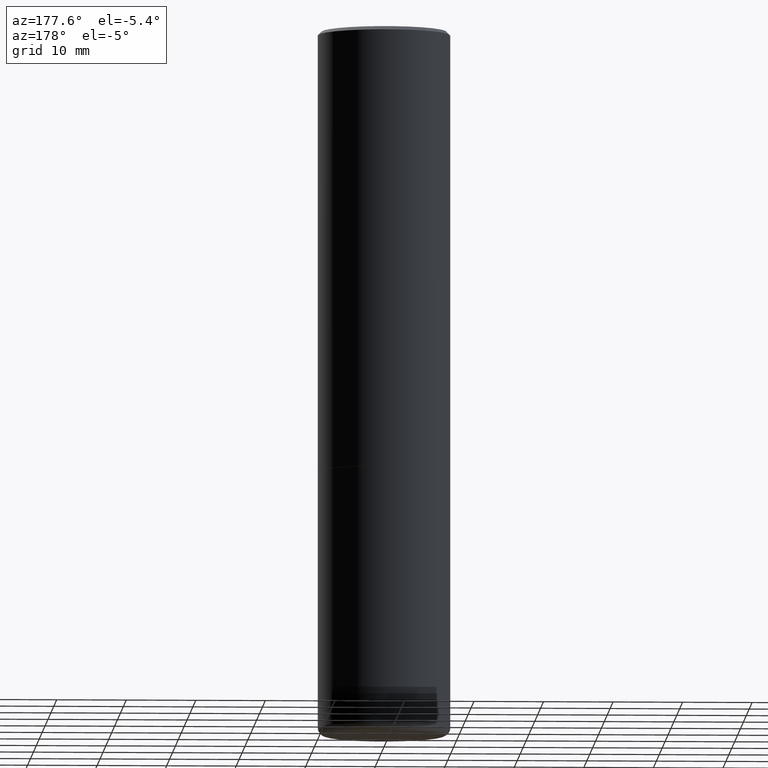
[diagram: clean part render]
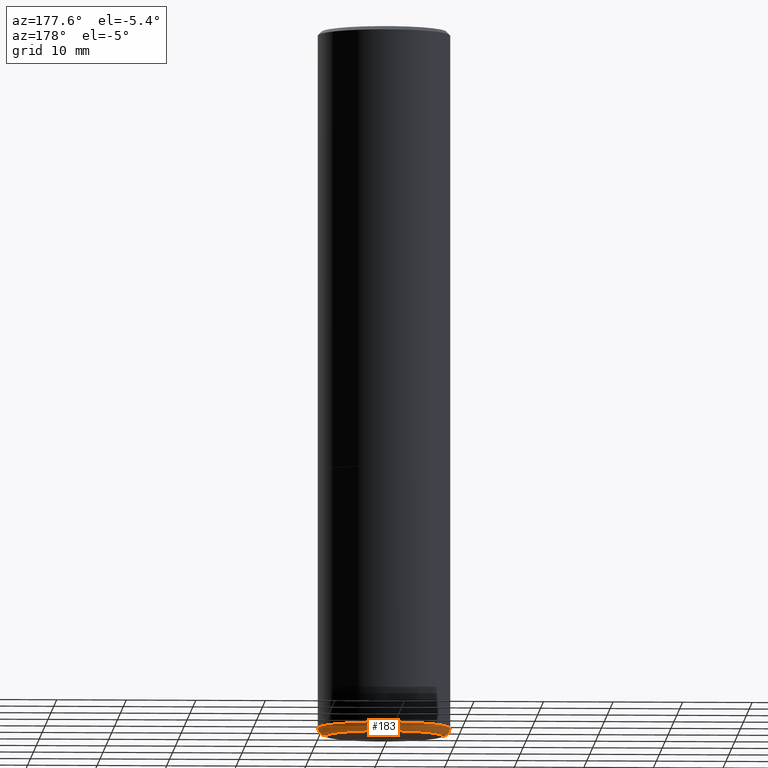
[diagram: same view with one face highlighted and labeled with its STEP entity id]
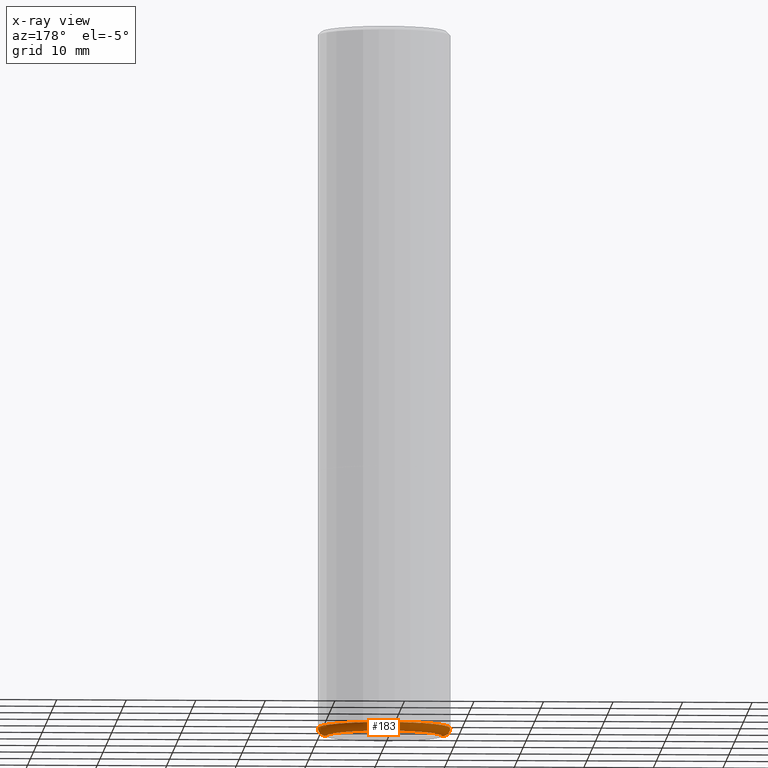
[diagram: x-ray of the same camera — body ghosted, the highlighted face saturated]
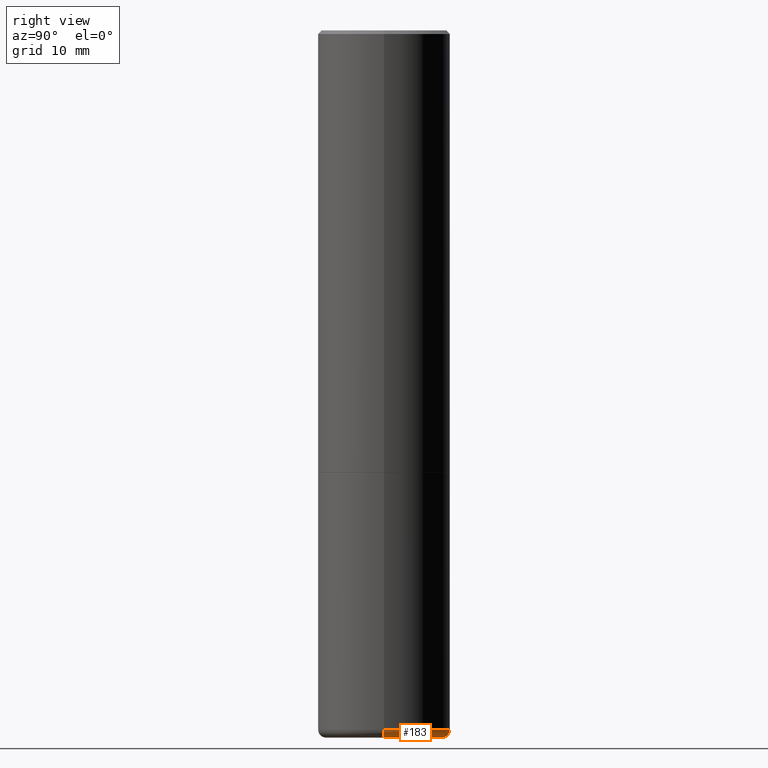
[diagram: same view with one face highlighted and labeled with its STEP entity id]
A machine part, auxiliary view. The second image highlights one B-rep face of the part: STEP entity #183.
The next image is the same camera in x-ray: the body ghosted, the highlighted face saturated — about 0% of this face is hidden behind the body in this view.
A second angle (right view) of the same face is appended — the face is thin or edge-on in the first view.
In plain terms, the highlighted toroidal blend (fillet) surface has major radius 8.382 mm and minor (blend) radius 1.143 mm.
Its self-contained STEP definition (entity closure, byte-faithful):
#2 = DIRECTION ( 'NONE',  ( 1.000000000000000000, -6.982962677686266711E-15, 0.000000000000000000 ) ) ;
#11 = CARTESIAN_POINT ( 'NONE',  ( -0.3749999999999997780, -8.604328423477052173E-15, -3.955061670936044216 ) ) ;
#19 = VERTEX_POINT ( 'NONE', #101 ) ;
#35 = CARTESIAN_POINT ( 'NONE',  ( 0.3276448819690678249, -1.625385733769750424E-14, -3.999999999999999556 ) ) ;
#37 = DIRECTION ( 'NONE',  ( -1.000000000000000000, 7.105427357600990815E-15, 0.000000000000000000 ) ) ;
#42 = CARTESIAN_POINT ( 'NONE',  ( -0.3300000000000000155, -1.146423299003865652E-14, -3.955061670936044216 ) ) ;
#60 = EDGE_CURVE ( 'NONE', #323, #276, #178, .T. ) ;
#63 = DIRECTION ( 'NONE',  ( -2.445468806185136597E-29, 3.491481338843145583E-15, 1.000000000000000000 ) ) ;
#64 = ORIENTED_EDGE ( 'NONE', *, *, #227, .F. ) ;
#65 = CARTESIAN_POINT ( 'NONE',  ( 9.671979942812559398E-29, -1.380902401804698764E-14, -3.955061670936044216 ) ) ;
#99 = DIRECTION ( 'NONE',  ( 1.000000000000000000, -6.982962677686267499E-15, 4.883557194083112901E-29 ) ) ;
#101 = CARTESIAN_POINT ( 'NONE',  ( 0.3749999999999997780, -1.642763502217933766E-14, -3.955061670936044216 ) ) ;
#103 = VERTEX_POINT ( 'NONE', #11 ) ;
#107 = CIRCLE ( 'NONE', #279, 0.04499999999999972772 ) ;
#129 = EDGE_LOOP ( 'NONE', ( #265, #424, #256, #64 ) ) ;
#139 = DIRECTION ( 'NONE',  ( -2.445468806185136597E-29, 3.491481338843145583E-15, 1.000000000000000000 ) ) ;
#159 = FACE_OUTER_BOUND ( 'NONE', #129, .T. ) ;
#167 = AXIS2_PLACEMENT_3D ( 'NONE', #398, #63, #99 ) ;
#178 = CIRCLE ( 'NONE', #394, 0.3276448819690678249 ) ;
#183 = ADVANCED_FACE ( 'NONE', ( #159 ), #389, .T. ) ;
#212 = CARTESIAN_POINT ( 'NONE',  ( -0.3276448819690678249, -1.139117860319911348E-14, -3.999999999999999556 ) ) ;
#216 = AXIS2_PLACEMENT_3D ( 'NONE', #65, #435, #333 ) ;
#227 = EDGE_CURVE ( 'NONE', #323, #19, #107, .T. ) ;
#232 = DIRECTION ( 'NONE',  ( 1.000000000000000000, -6.982962677686268288E-15, 0.000000000000000000 ) ) ;
#256 = ORIENTED_EDGE ( 'NONE', *, *, #320, .F. ) ;
#260 = EDGE_CURVE ( 'NONE', #276, #103, #358, .T. ) ;
#264 = AXIS2_PLACEMENT_3D ( 'NONE', #42, #337, #37 ) ;
#265 = ORIENTED_EDGE ( 'NONE', *, *, #60, .T. ) ;
#276 = VERTEX_POINT ( 'NONE', #212 ) ;
#279 = AXIS2_PLACEMENT_3D ( 'NONE', #373, #406, #2 ) ;
#320 = EDGE_CURVE ( 'NONE', #19, #103, #321, .T. ) ;
#321 = CIRCLE ( 'NONE', #216, 0.3749999999999997780 ) ;
#323 = VERTEX_POINT ( 'NONE', #35 ) ;
#333 = DIRECTION ( 'NONE',  ( 1.000000000000000000, -6.982962677686266711E-15, 0.000000000000000000 ) ) ;
#337 = DIRECTION ( 'NONE',  ( 7.105427357601001859E-15, 1.000000000000000000, -3.491481338843145583E-15 ) ) ;
#358 = CIRCLE ( 'NONE', #264, 0.04499999999999972772 ) ;
#373 = CARTESIAN_POINT ( 'NONE',  ( 0.3300000000000000155, -1.611340170168345755E-14, -3.955061670936044216 ) ) ;
#389 = TOROIDAL_SURFACE ( 'NONE', #167, 0.3300000000000000155, 0.04499999999999971384 ) ;
#394 = AXIS2_PLACEMENT_3D ( 'NONE', #437, #139, #232 ) ;
#398 = CARTESIAN_POINT ( 'NONE',  ( 9.671979942812559398E-29, -1.380902401804698764E-14, -3.955061670936044216 ) ) ;
#406 = DIRECTION ( 'NONE',  ( -6.982962677686266711E-15, -1.000000000000000000, 3.491481338843145583E-15 ) ) ;
#424 = ORIENTED_EDGE ( 'NONE', *, *, #260, .T. ) ;
#435 = DIRECTION ( 'NONE',  ( -2.445468806185136597E-29, 3.491481338843145583E-15, 1.000000000000000000 ) ) ;
#437 = CARTESIAN_POINT ( 'NONE',  ( 9.781875224740545266E-29, -1.396592535537258075E-14, -3.999999999999999556 ) ) ;